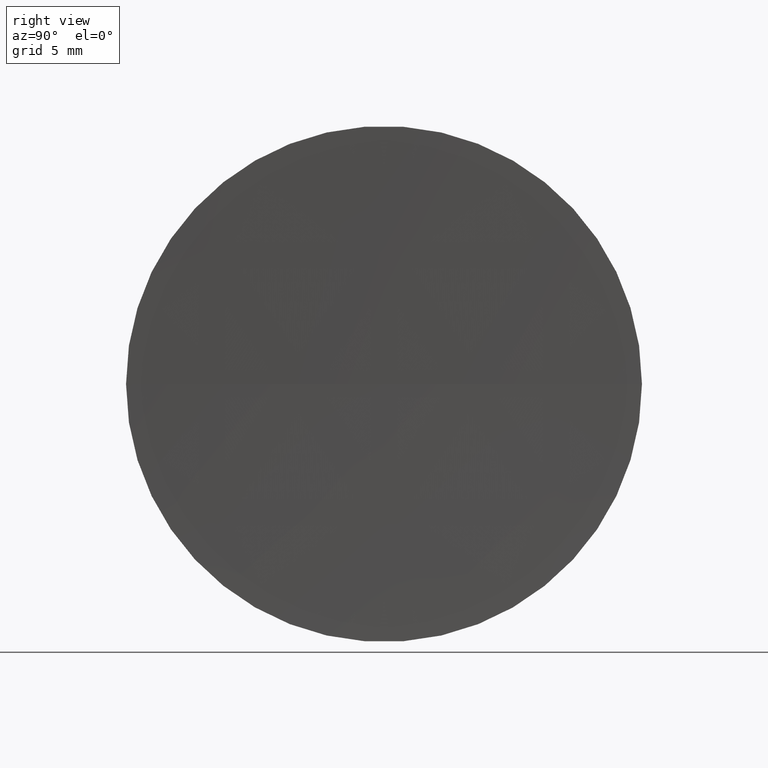
[diagram: clean part render]
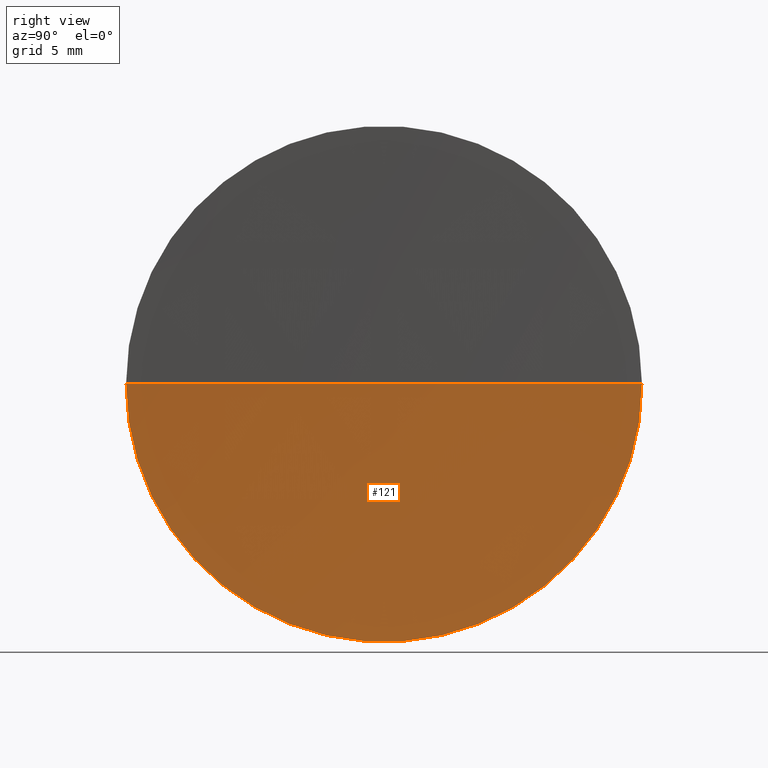
[diagram: same view with one face highlighted and labeled with its STEP entity id]
A machine part, right view. The second image highlights one B-rep face of the part: STEP entity #121.
In plain terms, the highlighted spherical surface has radius 371.3 mm.
Its self-contained STEP definition (entity closure, byte-faithful):
#11 = FACE_OUTER_BOUND ( 'NONE', #192, .T. ) ;
#12 = VERTEX_POINT ( 'NONE', #79 ) ;
#17 = SPHERICAL_SURFACE ( 'NONE', #156, 371.3000000000000700 ) ;
#42 = CARTESIAN_POINT ( 'NONE',  ( 125.5121936984948100, 65.21684047094019800, 0.0000000000000000000 ) ) ;
#45 = ORIENTED_EDGE ( 'NONE', *, *, #167, .T. ) ;
#52 = VERTEX_POINT ( 'NONE', #76 ) ;
#54 = DIRECTION ( 'NONE',  ( 0.0000000000000000000, -0.0000000000000000000, 1.000000000000000000 ) ) ;
#68 = DIRECTION ( 'NONE',  ( 0.0000000000000000000, 0.0000000000000000000, -1.000000000000000000 ) ) ;
#76 = CARTESIAN_POINT ( 'NONE',  ( 125.7226627224782000, 77.71684047094014100, 0.0000000000000000000 ) ) ;
#79 = CARTESIAN_POINT ( 'NONE',  ( 125.7226627224782000, 52.71684047094036900, -1.530808498934169000E-015 ) ) ;
#83 = DIRECTION ( 'NONE',  ( 1.000000000000000000, 0.0000000000000000000, 0.0000000000000000000 ) ) ;
#91 = CIRCLE ( 'NONE', #162, 12.49999999999990800 ) ;
#94 = DIRECTION ( 'NONE',  ( -8.496118506040342700E-032, 1.224646799147353200E-016, -1.000000000000000000 ) ) ;
#119 = AXIS2_PLACEMENT_3D ( 'NONE', #155, #94, #124 ) ;
#121 = ADVANCED_FACE ( 'NONE', ( #11 ), #17, .F. ) ;
#123 = ORIENTED_EDGE ( 'NONE', *, *, #149, .F. ) ;
#124 = DIRECTION ( 'NONE',  ( 0.0000000000000000000, 1.000000000000000000, 1.224646799147353200E-016 ) ) ;
#126 = CARTESIAN_POINT ( 'NONE',  ( 496.8121936984948700, 65.21684047094044000, 0.0000000000000000000 ) ) ;
#135 = DIRECTION ( 'NONE',  ( -1.000000000000000000, -6.937607244762875000E-016, -0.0000000000000000000 ) ) ;
#140 = ORIENTED_EDGE ( 'NONE', *, *, #188, .F. ) ;
#149 = EDGE_CURVE ( 'NONE', #52, #12, #91, .T. ) ;
#150 = DIRECTION ( 'NONE',  ( 0.0000000000000000000, -1.000000000000000000, 0.0000000000000000000 ) ) ;
#155 = CARTESIAN_POINT ( 'NONE',  ( 496.8121936984948700, 65.21684047094044000, 0.0000000000000000000 ) ) ;
#156 = AXIS2_PLACEMENT_3D ( 'NONE', #126, #68, #173 ) ;
#158 = CIRCLE ( 'NONE', #189, 371.3000000000001300 ) ;
#162 = AXIS2_PLACEMENT_3D ( 'NONE', #186, #135, #150 ) ;
#163 = VERTEX_POINT ( 'NONE', #42 ) ;
#167 = EDGE_CURVE ( 'NONE', #52, #163, #158, .T. ) ;
#170 = CARTESIAN_POINT ( 'NONE',  ( 496.8121936984948700, 65.21684047094044000, 0.0000000000000000000 ) ) ;
#173 = DIRECTION ( 'NONE',  ( -7.475242557400729000E-016, 1.000000000000000000, 0.0000000000000000000 ) ) ;
#175 = CIRCLE ( 'NONE', #119, 371.3000000000000700 ) ;
#186 = CARTESIAN_POINT ( 'NONE',  ( 125.7226627224781800, 65.21684047094032600, 0.0000000000000000000 ) ) ;
#188 = EDGE_CURVE ( 'NONE', #12, #163, #175, .T. ) ;
#189 = AXIS2_PLACEMENT_3D ( 'NONE', #170, #54, #83 ) ;
#192 = EDGE_LOOP ( 'NONE', ( #140, #123, #45 ) ) ;